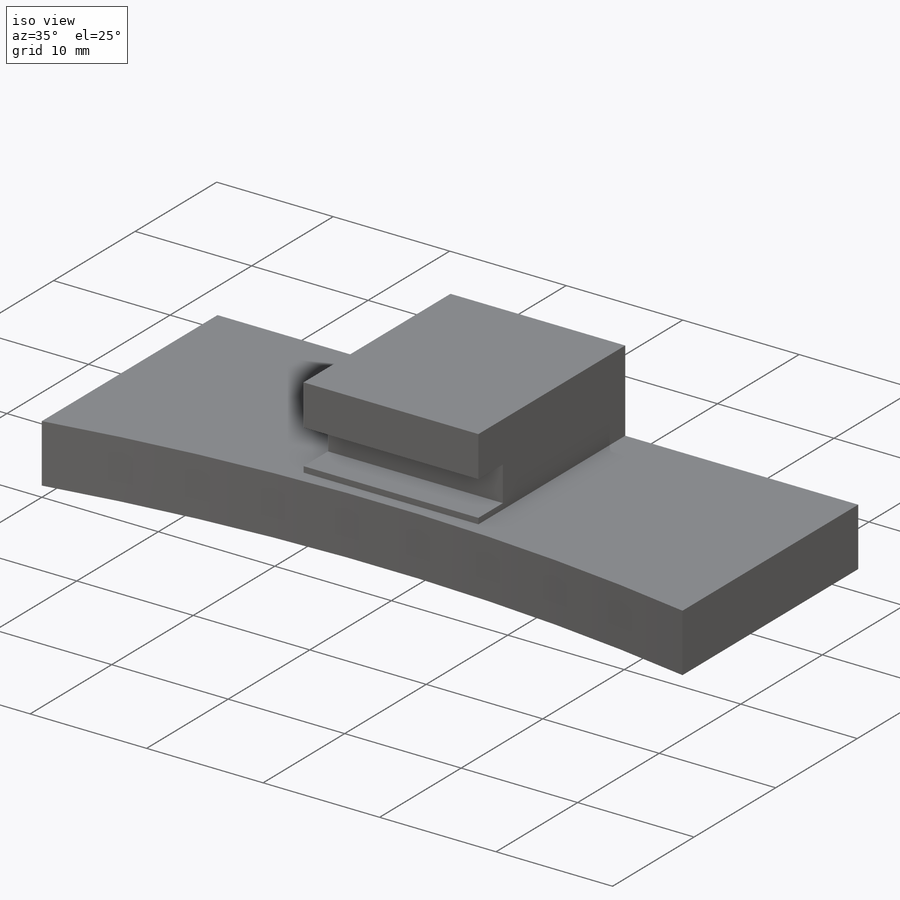
[diagram: iso view]
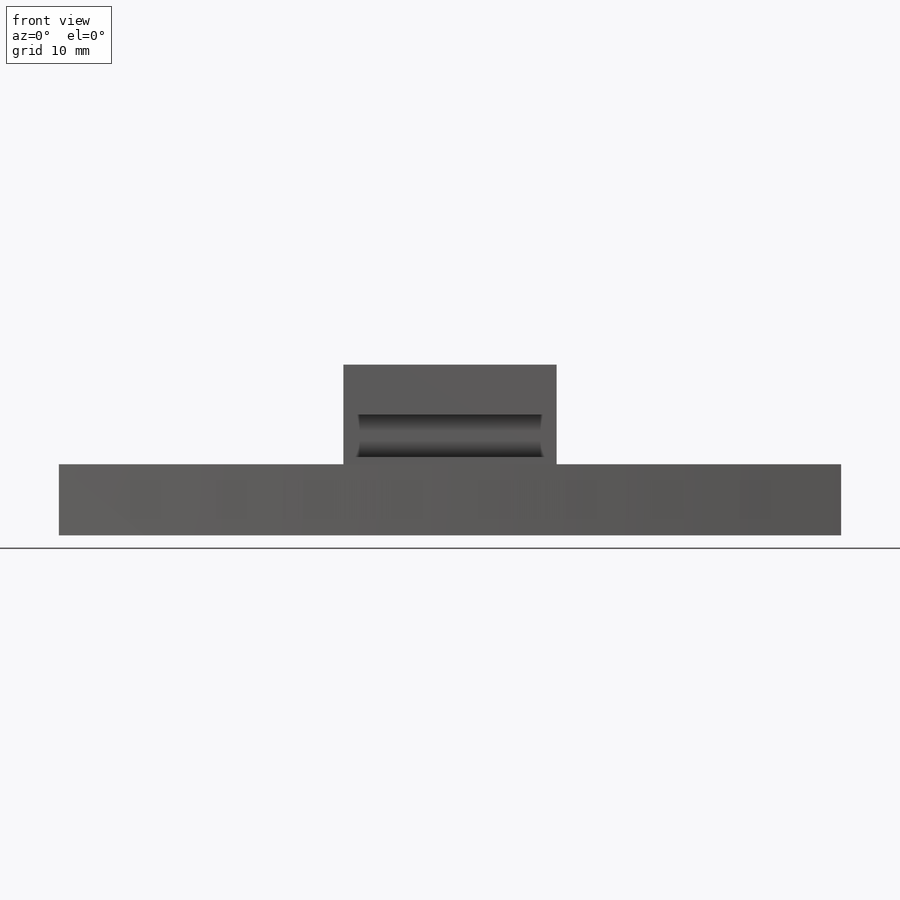
[diagram: front view]
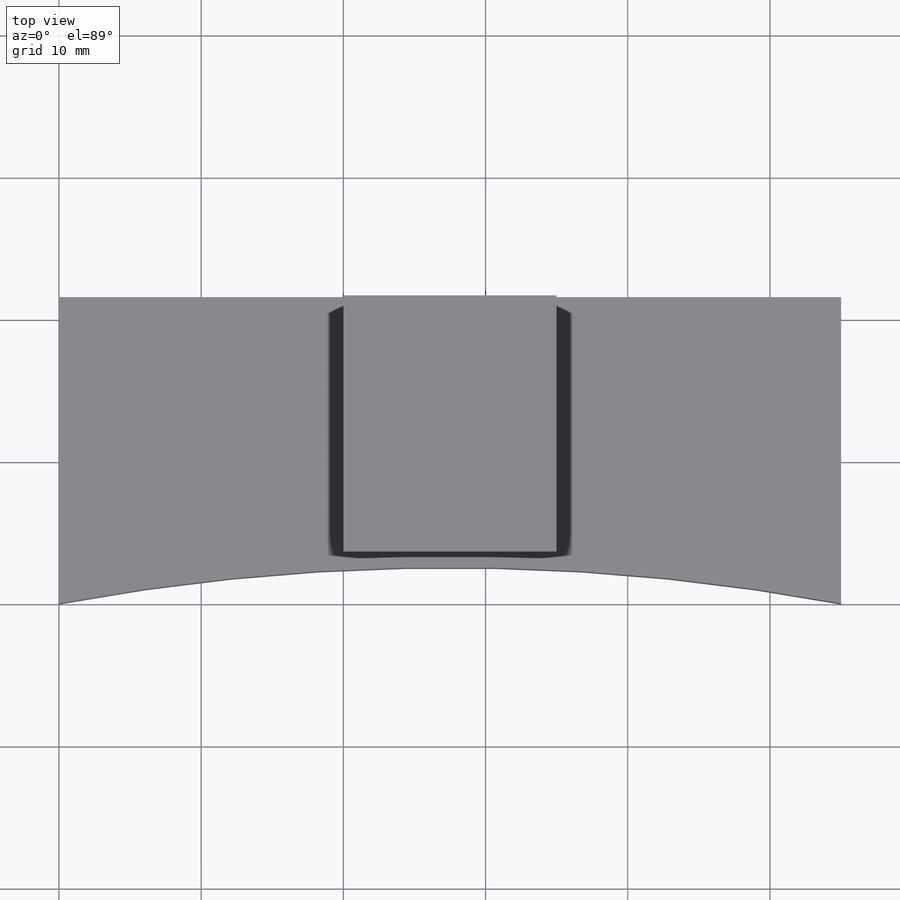
[diagram: top view]
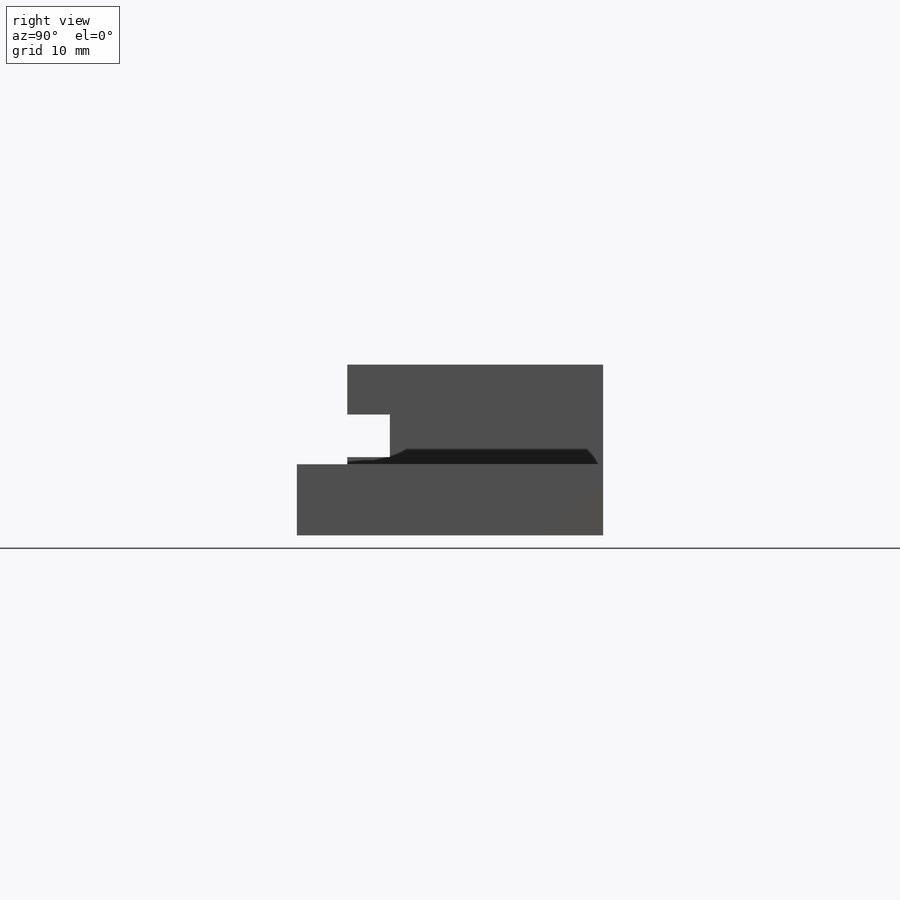
[diagram: right view]
SOLIDWORKS PART (.sldprt)
format: sldprt  version: not decoded by parser v0  size: 233,472 bytes
history: native  units: mm
features: sketch x7, extrude x4, material x1, cut_extrude x1, hole x1, thread x1 + 1 further entry (+10 scaffold rows collapsed)
feature tree (26):
  scaffold x10  (default folders/planes/origin — collapsed)
  material  "Material <not specified>"
  "Annotations"  RD1=55mm RD2=21.542379mm RD3=169mm
  sketch  "Sketch1"  dims[c1.D4=300.0mm c1.D3=150.0mm c1.D1=55.0mm c1.D2=31.54mm c2.D3=19.0mm c2.D1=55.0mm c2.D2=~21.542379mm c3.D3=169.0mm]
  extrude  "Boss-Extrude1"  Depth=5mm
  sketch  "Sketch4"  dims[D1=15.0mm D2=18.0mm D3=20.0mm]
  extrude  "Boss-Extrude2"  Depth=0.5mm
  sketch  "Sketch5"  dims[D1=15.0mm]
  extrude  "Boss-Extrude3"  Depth=3mm
  sketch  "Sketch6"  dims[D1=18.0mm]
  extrude  "Boss-Extrude4"  Depth=3.5mm
  sketch  "Sketch9"  dims[c1.D1=~4.339329mm c1.D3=9.0mm c2.D1=27.5mm c2.D2=6.5mm]
  cut_extrude  "Cut-Extrude1"  Depth=4mm
  hole  "M8x1.0 Tapped Hole1"  Diameter=7mm Depth=8mm
  sketch  "Sketch11"
  sketch  "Sketch10"  dims[hole-wizard template sketch: 39 standard entries collapsed; hole parameters kept: c13.Tap Drill Dia.=7.0mm c13.Tap Drill Depth=8.0mm c13.Near C'Sink Dia.=8.05mm c13.D4=~33.297463mm c13.Near C'Sink Angle=90.0deg c14.D5=~14.816244mm c14.Drill Angle=118.0deg]
  thread  "Hole Thread1"  Diameter=8mm  [1 undecoded]
decode coverage: 13 of 14 modeling features carry decoded parameters; 1 rows unclassified (native names shown)
note: ~ marks probable driven/reference dimensions
note: 1 parameter value undecoded
note: suppression state not decoded; provenance and decode notes live in map.json
